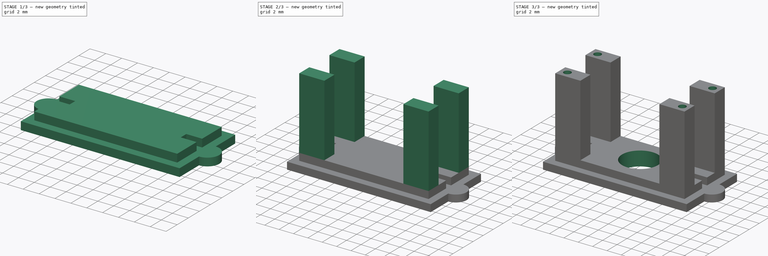
[diagram: build sequence overview — one tinted view per stage of 3, left to right]
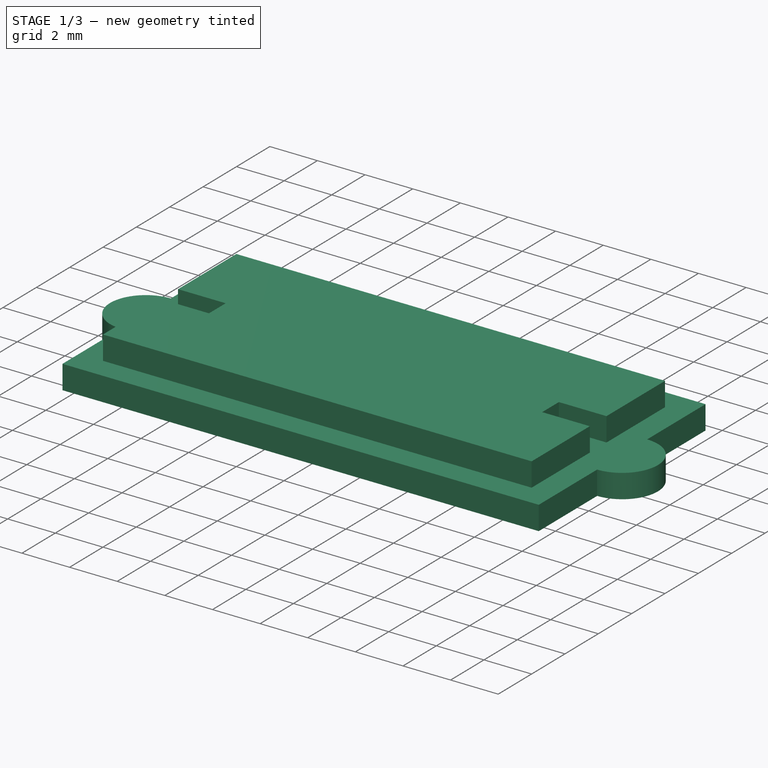
[diagram: stage 1 of 3 — iso view after this stage's code; geometry added in this stage tinted green]
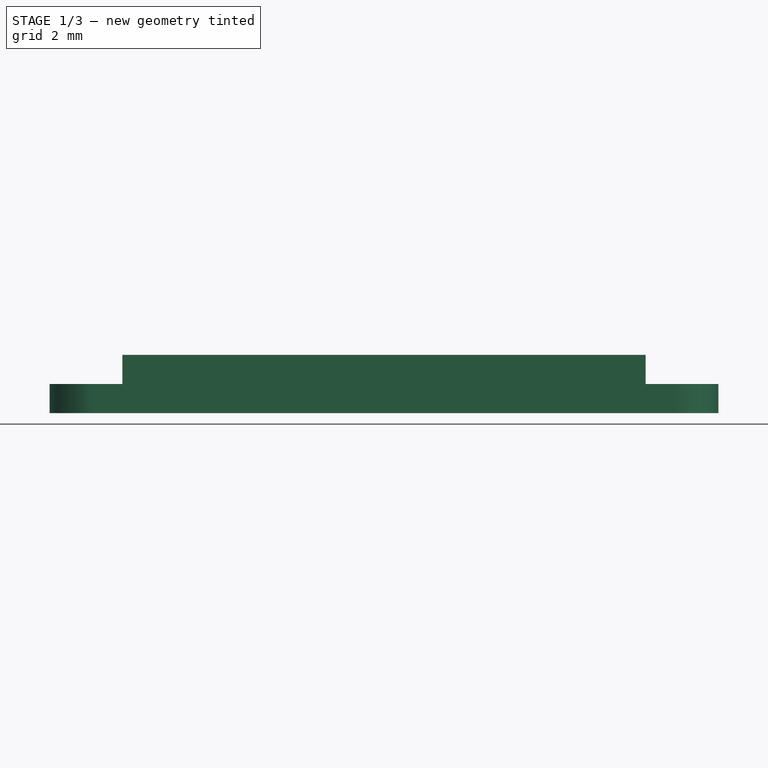
[diagram: stage 1 of 3 — front view after this stage's code; geometry added in this stage tinted green]
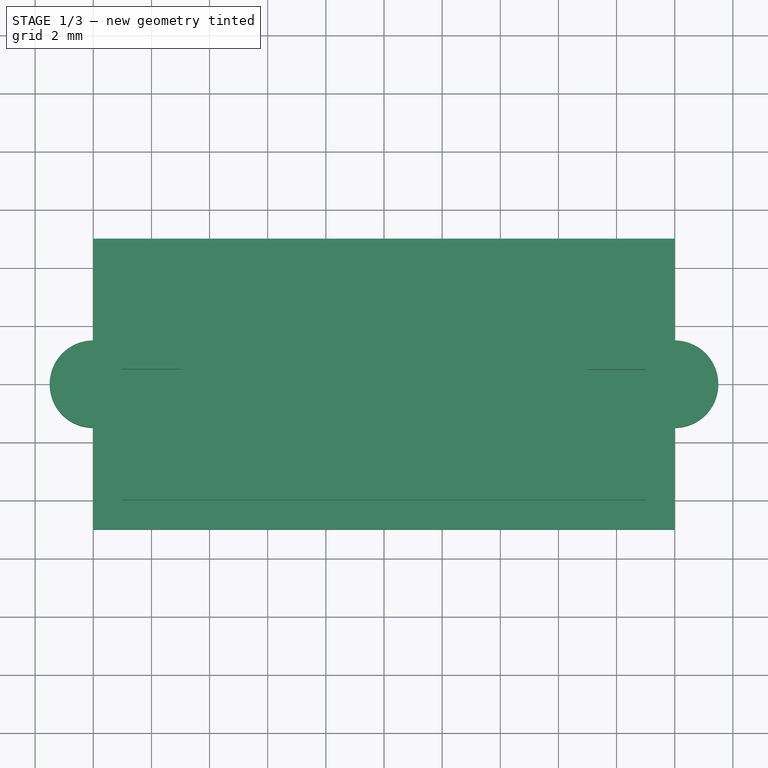
[diagram: stage 1 of 3 — top view after this stage's code; geometry added in this stage tinted green]
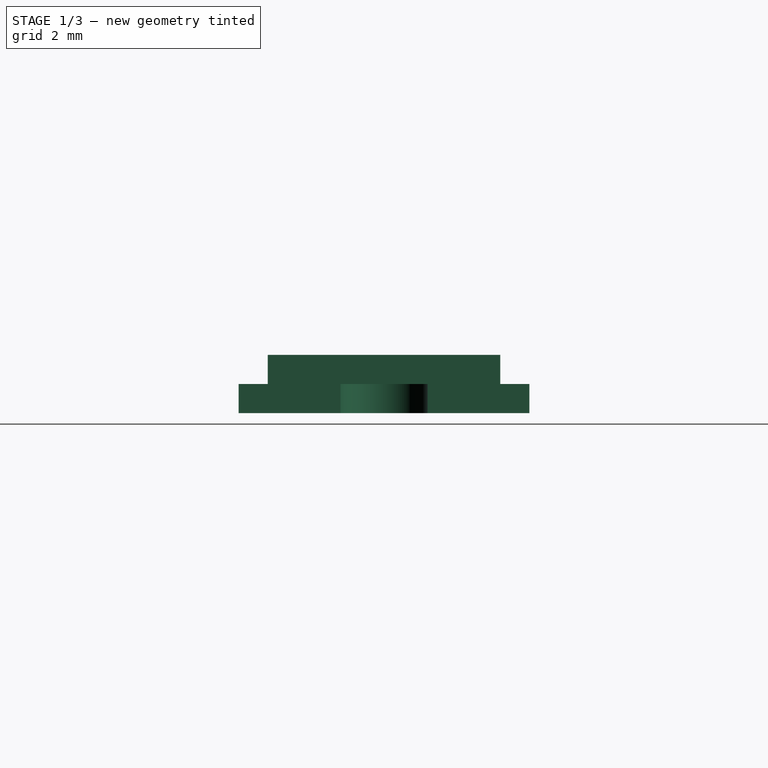
[diagram: stage 1 of 3 — right view after this stage's code; geometry added in this stage tinted green]
FCSTD DOCUMENT  (FreeCAD 0.20R29177 +233 (Git))
Label: suct_chamb_floor05
License: All rights reserved
LicenseURL: http://en.wikipedia.org/wiki/All_rights_reserved
objects: Sketcher::SketchObject×5, PartDesign::Pad×3, Spreadsheet::Sheet×1, PartDesign::Pocket×1, PartDesign::Hole×1, PartDesign::Body×1
note: 16 computed .brp shape members not serialized (recipe doc carries the construction recipe); baked Part::Feature solids carry a one-line shape summary decoded from their .brp

FEATURE [Spreadsheet::Sheet] Spreadsheet
  cells = A1=floor ; B1=of suct ; C1=chamber; C2=out ; D2=in; B3=ln; C3(fl_ln_o)=20; D3(fl_ln_in)=18; B4=w; C4(fl_w_o)=10; D4(fl_w_in)=8; B5=h; C5(fl_h_o)=1; D5(fl_h_in)=1; B6=hole d; C6(hole_dm)=5; A8=fangs; B8=ln; C8(fn_ln)=3.5; B9=w; C9(fn_w)=2; B10=h; C10(fn_h)=10; B11=fg; C11(fn_fg)=1; B12=vc hole; C12=2; C13=1; B14=fix hole; C14(fix_holed)=1; B15=shift_h; C15(fix_shh)=1; B16=shift_ln; C16(fix_shln)=1
FEATURE [Sketcher::SketchObject] Sketch  label="bt"
  FullyConstrained = false
  MapMode = 5
  Support = -> [XY_Plane]
  expr: Constraints[8] = Spreadsheet.fl_ln_o
  expr: Constraints[9] = Spreadsheet.fl_w_o
  sketch-geometry (8):
    g0: LineSegment StartX=-10 StartY=5 StartZ=0 EndX=10 EndY=5 EndZ=0
    g1: LineSegment StartX=10 StartY=5 StartZ=0 EndX=10 EndY=1.5 EndZ=0
    g2: LineSegment StartX=10 StartY=-5 StartZ=0 EndX=-10 EndY=-5 EndZ=0
    g3: LineSegment StartX=-10 StartY=-5 StartZ=0 EndX=-10 EndY=-1.5 EndZ=0
    g4: ArcOfCircle CenterX=10 CenterY=0 CenterZ=0 NormalX=0 NormalY=0 NormalZ=1 AngleXU=0 Radius=1.5 StartAngle=4.71239 EndAngle=7.85398
    g5: ArcOfCircle CenterX=-10 CenterY=0 CenterZ=0 NormalX=0 NormalY=0 NormalZ=1 AngleXU=0 Radius=1.5 StartAngle=1.5708 EndAngle=4.71239
    g6: LineSegment StartX=10 StartY=-1.5 StartZ=0 EndX=10 EndY=-5 EndZ=0
    g7: LineSegment StartX=-10 StartY=1.5 StartZ=0 EndX=-10 EndY=5 EndZ=0
  constraints (21):
    c: Coincident(g0,g1)
    c: Coincident(g6,g2)
    c: Coincident(g2,g3)
    c: Coincident(g7,g0)
    c: Horizontal(g0)
    c: Horizontal(g2)
    c: Vertical(g1)
    c: Vertical(g3)
    c: DistanceX(g0,g0) = 20
    c: DistanceY(g6,g1) = 10
    c: Symmetric(g6,g0,g-1)
    c: PointOnObject(g4,g1)
    c: Diameter(g4) = 3
    c: PointOnObject(g5,g3)
    c: Diameter(g5) = 3
    c: PointOnObject(g5,g-1)
    c: PointOnObject(g4,g-1)
    c: Coincident(g1,g4)
    c: Coincident(g6,g4)
    c: Coincident(g3,g5)
    c: Coincident(g7,g5)
FEATURE [PartDesign::Pad] Pad  label="bottom"
  Direction = (0,0,1)
  Length = 1
  Length2 = 100
  Profile = -> Sketch
  Type = 0
  expr: Length = Spreadsheet.fl_h_o
FEATURE [Sketcher::SketchObject] Sketch001  label="btmin"
  FullyConstrained = false
  MapMode = 5
  Placement = pos=(0,0,1) rot=(0,0,1;0rad)
  Support = -> [Pad]
  expr: Constraints[8] = Spreadsheet.fl_ln_in
  expr: Constraints[9] = Spreadsheet.fl_w_in
  sketch-geometry (12):
    g0: LineSegment StartX=-9 StartY=4 StartZ=0 EndX=9 EndY=4 EndZ=0
    g1: LineSegment StartX=9 StartY=4 StartZ=0 EndX=9 EndY=0.489518 EndZ=0
    g2: LineSegment StartX=9 StartY=-4 StartZ=0 EndX=-9 EndY=-4 EndZ=0
    g3: LineSegment StartX=-9 StartY=-4 StartZ=0 EndX=-9 EndY=-0.49649 EndZ=0
    g4: LineSegment StartX=9 StartY=0.489518 StartZ=0 EndX=7 EndY=0.489518 EndZ=0
    g5: LineSegment StartX=9 StartY=-0.510482 StartZ=0 EndX=7 EndY=-0.510482 EndZ=0
    g6: LineSegment StartX=7 StartY=0.489518 StartZ=0 EndX=7 EndY=-0.510482 EndZ=0
    g7: LineSegment StartX=-9 StartY=0.50351 StartZ=0 EndX=-7 EndY=0.50351 EndZ=0
    g8: LineSegment StartX=-9 StartY=-0.49649 StartZ=0 EndX=-7 EndY=-0.49649 EndZ=0
    g9: LineSegment StartX=-7 StartY=0.50351 StartZ=0 EndX=-7 EndY=-0.49649 EndZ=0
    g10: LineSegment StartX=-9 StartY=0.50351 StartZ=0 EndX=-9 EndY=4 EndZ=0
    g11: LineSegment StartX=9 StartY=-0.510482 StartZ=0 EndX=9 EndY=-4 EndZ=0
  constraints (29):
    c: Coincident(g0,g1)
    c: Coincident(g11,g2)
    c: Coincident(g2,g3)
    c: Coincident(g10,g0)
    c: Horizontal(g0)
    c: Horizontal(g2)
    c: Vertical(g1)
    c: Vertical(g3)
    c: DistanceX(g0,g0) = 18
    c: DistanceY(g11,g1) = 8
    c: Symmetric(g2,g0,g-1)
    c: Horizontal(g4)
    c: Horizontal(g5)
    c: Coincident(g6,g4)
    c: Coincident(g6,g5)
    c: Vertical(g6)
    c: Horizontal(g7)
    c: Horizontal(g8)
    c: Coincident(g9,g7)
    c: Coincident(g9,g8)
    c: Vertical(g9)
    c: DistanceX(g7,g7) = 2
    c: DistanceX(g4,g4) = 2
    c: DistanceY(g6,g6) = 1
    c: DistanceY(g9,g9) = 1
    c: Coincident(g3,g8)
    c: Coincident(g10,g7)
    c: Coincident(g1,g4)
    c: Coincident(g11,g5)
FEATURE [PartDesign::Pad] Pad001  label="bottm_ins"
  BaseFeature = -> Pad
  Direction = (0,0,1)
  Length = 1
  Length2 = 10
  Profile = -> Sketch001
  ReferenceAxis = -> Sketch001 [N_Axis]
  Type = 0
  expr: Length = Spreadsheet.fl_h_in
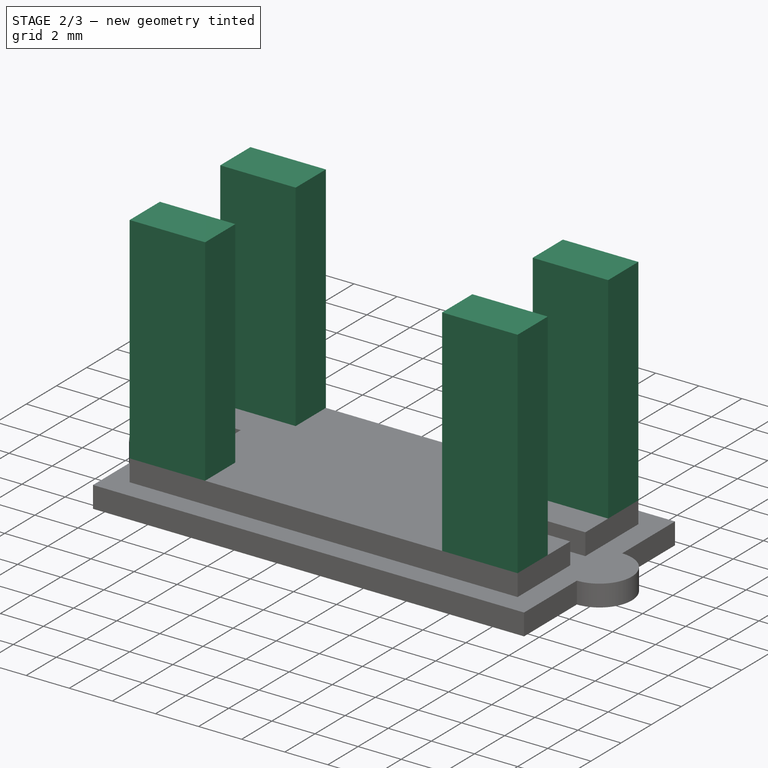
[diagram: stage 2 of 3 — iso view after this stage's code; geometry added in this stage tinted green]
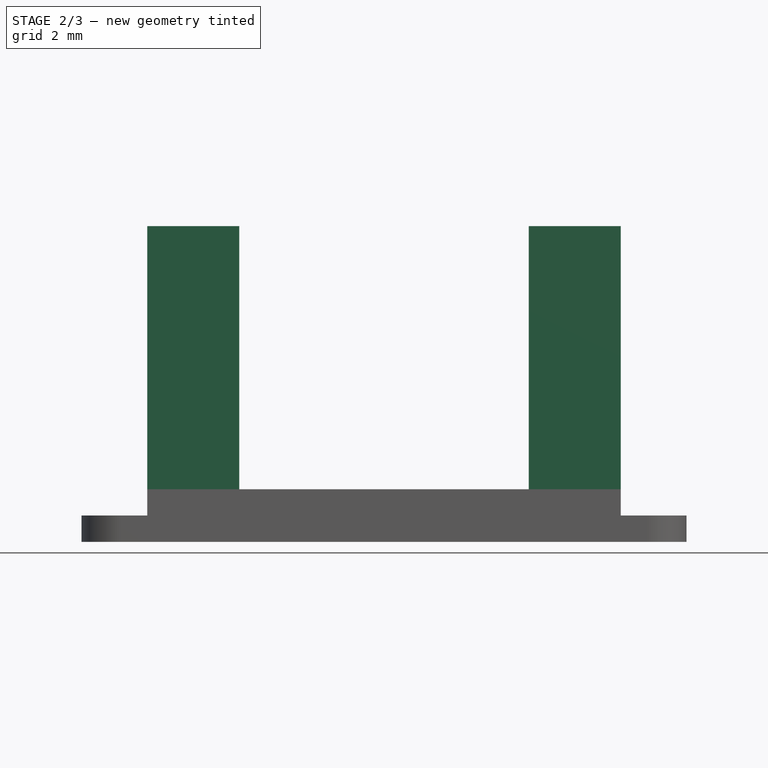
[diagram: stage 2 of 3 — front view after this stage's code; geometry added in this stage tinted green]
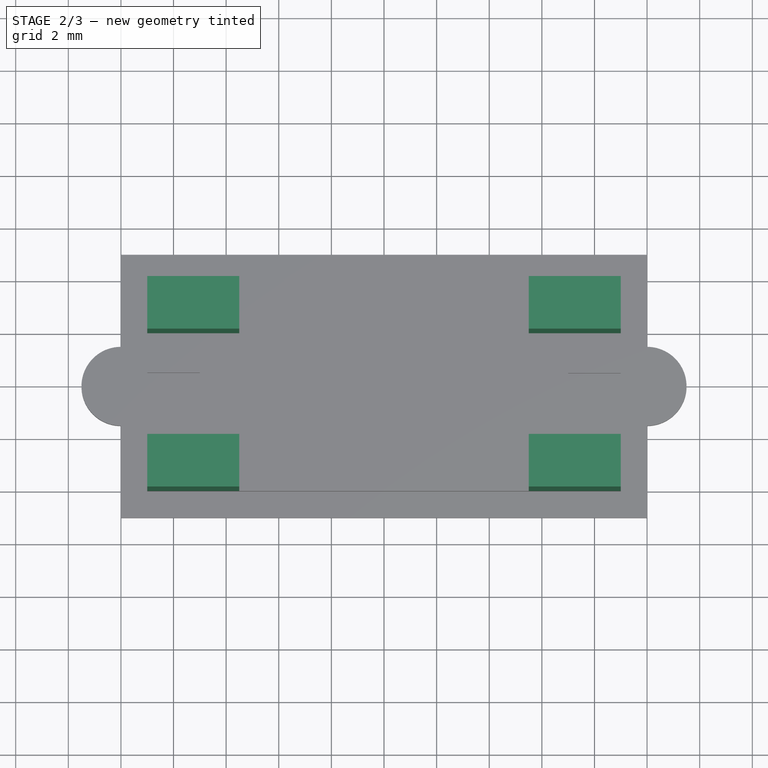
[diagram: stage 2 of 3 — top view after this stage's code; geometry added in this stage tinted green]
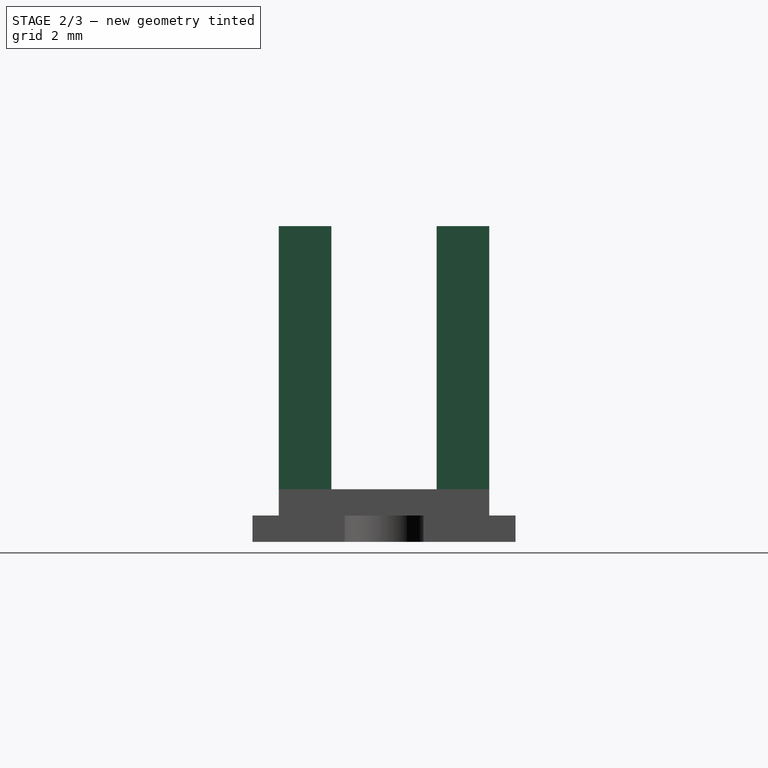
[diagram: stage 2 of 3 — right view after this stage's code; geometry added in this stage tinted green]
FEATURE [Sketcher::SketchObject] Sketch002  label="stk"
  ExternalGeometry = -> [Pad001]
  FullyConstrained = true
  MapMode = 5
  Placement = pos=(0,0,2) rot=(0,0,1;0rad)
  Support = -> [Pad001]
  expr: Constraints[36] = Spreadsheet.fn_ln
  expr: Constraints[37] = Spreadsheet.fn_ln
  expr: Constraints[38] = Spreadsheet.fn_w
  expr: Constraints[39] = Spreadsheet.fn_w
  sketch-geometry (16):
    g0: LineSegment StartX=9 StartY=-4 StartZ=0 EndX=5.5 EndY=-4 EndZ=0
    g1: LineSegment StartX=5.5 StartY=-4 StartZ=0 EndX=5.5 EndY=-2 EndZ=0
    g2: LineSegment StartX=5.5 StartY=-2 StartZ=0 EndX=9 EndY=-2 EndZ=0
    g3: LineSegment StartX=9 StartY=-2 StartZ=0 EndX=9 EndY=-4 EndZ=0
    g4: LineSegment StartX=9 StartY=4 StartZ=0 EndX=5.5 EndY=4 EndZ=0
    g5: LineSegment StartX=5.5 StartY=4 StartZ=0 EndX=5.5 EndY=2 EndZ=0
    g6: LineSegment StartX=5.5 StartY=2 StartZ=0 EndX=9 EndY=2 EndZ=0
    g7: LineSegment StartX=9 StartY=2 StartZ=0 EndX=9 EndY=4 EndZ=0
    g8: LineSegment StartX=-9 StartY=4 StartZ=0 EndX=-5.5 EndY=4 EndZ=0
    g9: LineSegment StartX=-5.5 StartY=4 StartZ=0 EndX=-5.5 EndY=2 EndZ=0
    g10: LineSegment StartX=-5.5 StartY=2 StartZ=0 EndX=-9 EndY=2 EndZ=0
    g11: LineSegment StartX=-9 StartY=2 StartZ=0 EndX=-9 EndY=4 EndZ=0
    g12: LineSegment StartX=-9 StartY=-4 StartZ=0 EndX=-5.5 EndY=-4 EndZ=0
    g13: LineSegment StartX=-5.5 StartY=-4 StartZ=0 EndX=-5.5 EndY=-2 EndZ=0
    g14: LineSegment StartX=-5.5 StartY=-2 StartZ=0 EndX=-9 EndY=-2 EndZ=0
    g15: LineSegment StartX=-9 StartY=-2 StartZ=0 EndX=-9 EndY=-4 EndZ=0
  constraints (44):
    c: Coincident(g0,g1)
    c: Coincident(g1,g2)
    c: Coincident(g2,g3)
    c: Coincident(g3,g0)
    c: Horizontal(g0)
    c: Horizontal(g2)
    c: Vertical(g1)
    c: Vertical(g3)
    c: Coincident(g0,g-3)
    c: Coincident(g4,g5)
    c: Coincident(g5,g6)
    c: Coincident(g6,g7)
    c: Coincident(g7,g4)
    c: Horizontal(g4)
    c: Horizontal(g6)
    c: Vertical(g5)
    c: Vertical(g7)
    c: Coincident(g4,g-4)
    c: Coincident(g8,g9)
    c: Coincident(g9,g10)
    c: Coincident(g10,g11)
    c: Coincident(g11,g8)
    c: Horizontal(g8)
    c: Horizontal(g10)
    c: Vertical(g9)
    c: Vertical(g11)
    c: Coincident(g8,g-4)
    c: Coincident(g12,g13)
    c: Coincident(g13,g14)
    c: Coincident(g14,g15)
    c: Coincident(g15,g12)
    c: Horizontal(g12)
    c: Horizontal(g14)
    c: Vertical(g13)
    c: Vertical(g15)
    c: Coincident(g12,g-3)
    c: DistanceX(g2,g2) = 3.5
    c: DistanceX(g10,g10) = 3.5
    c: DistanceY(g1,g1) = 2
    c: DistanceY(g9,g9) = 2
    c: Equal(g2,g6)
    c: Equal(g9,g5)
    c: Equal(g10,g14)
    c: Equal(g1,g13)
FEATURE [PartDesign::Pad] Pad002  label="steck"
  BaseFeature = -> Pad001
  Direction = (0,0,1)
  Length = 10
  Length2 = 10
  Profile = -> Sketch002
  ReferenceAxis = -> Sketch002 [N_Axis]
  Type = 0
  expr: Length = Spreadsheet.fn_h
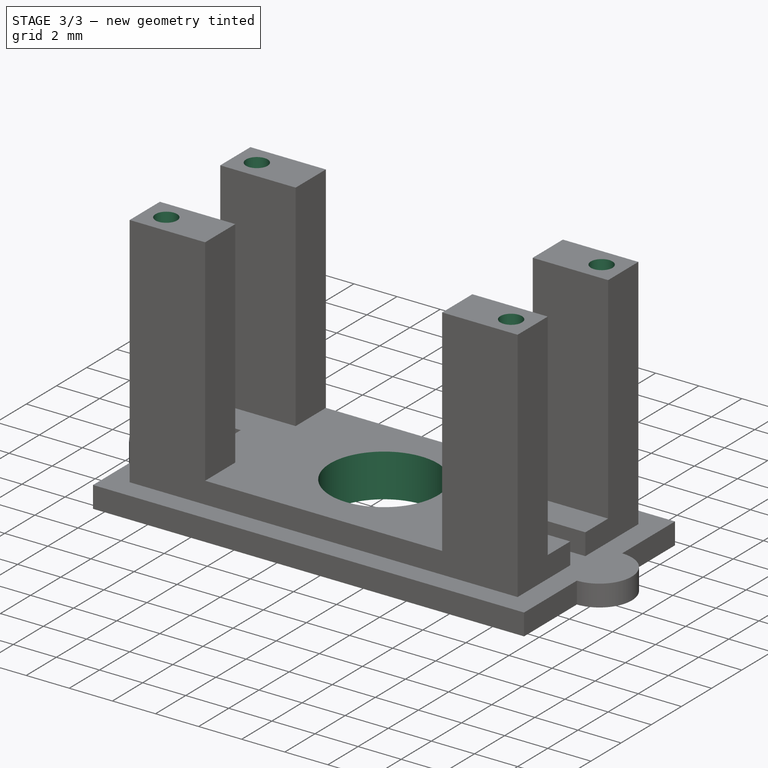
[diagram: stage 3 of 3 — iso view after this stage's code; geometry added in this stage tinted green]
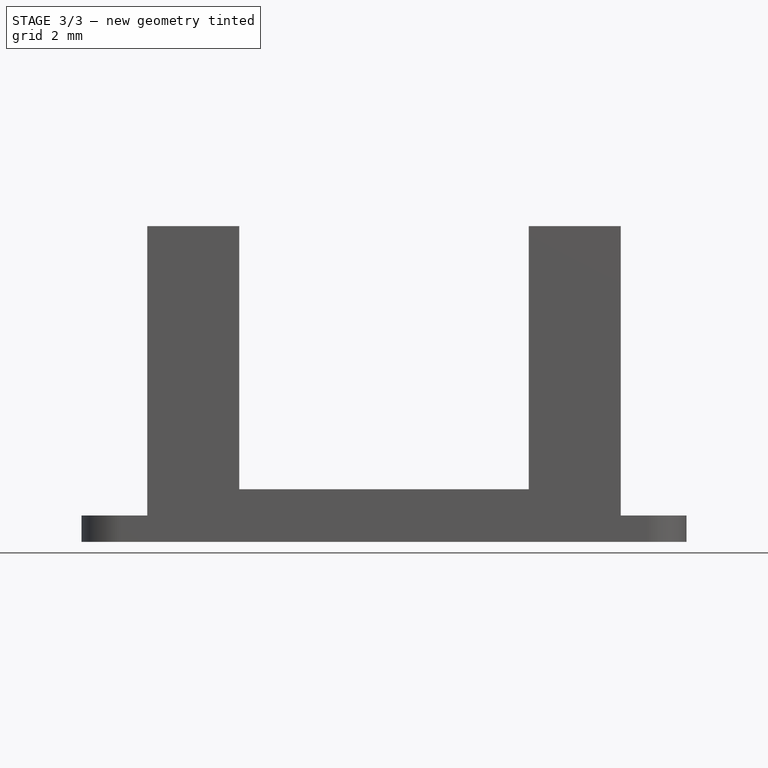
[diagram: stage 3 of 3 — front view after this stage's code; geometry added in this stage tinted green]
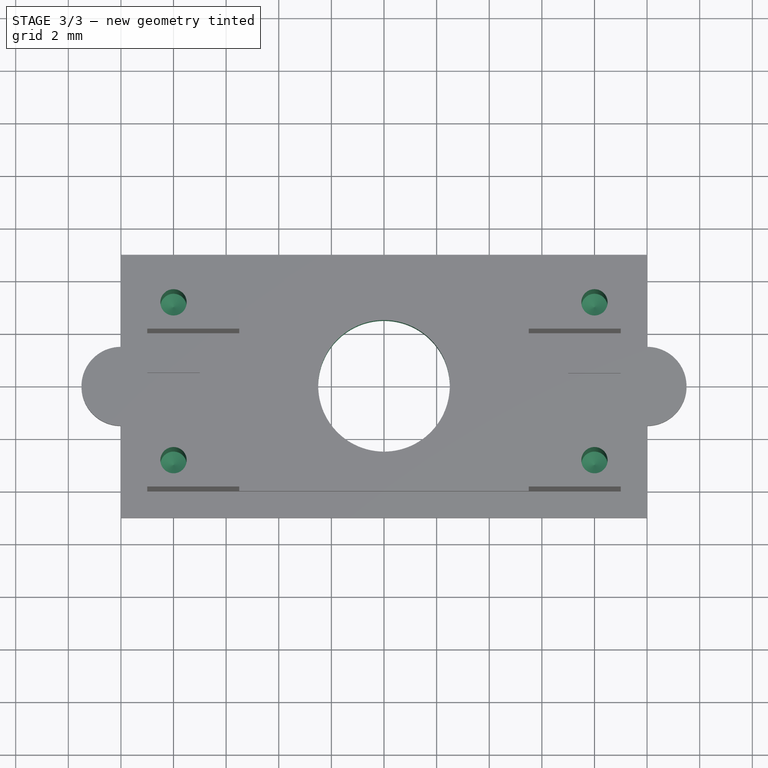
[diagram: stage 3 of 3 — top view after this stage's code; geometry added in this stage tinted green]
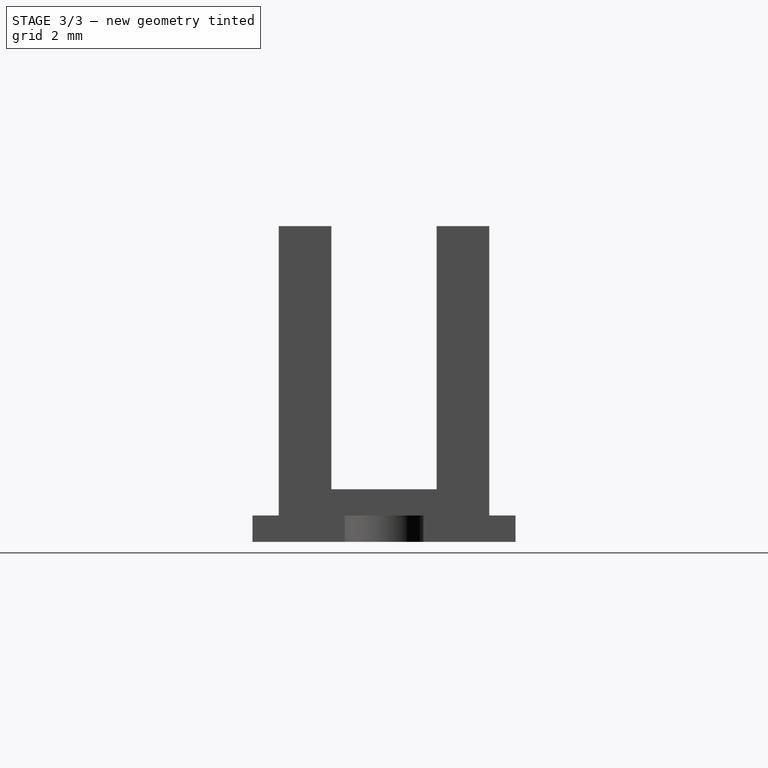
[diagram: stage 3 of 3 — right view after this stage's code; geometry added in this stage tinted green]
FEATURE [Sketcher::SketchObject] Sketch003  label="sct_h"
  FullyConstrained = true
  MapMode = 5
  Placement = pos=(0,0,2) rot=(0,0,1;0rad)
  Support = -> [Pad002]
  expr: Constraints[1] = Spreadsheet.hole_dm
  sketch-geometry (1):
    g0: Circle CenterX=0 CenterY=0 CenterZ=0 NormalX=0 NormalY=0 NormalZ=1 AngleXU=0 Radius=2.5
  constraints (2):
    c: Coincident(g0,g-1)
    c: Diameter(g0) = 5
FEATURE [PartDesign::Pocket] Pocket  label="suct_hole"
  BaseFeature = -> Pad002
  Direction = (0,0,-1)
  Length = 5
  Length2 = 5
  Profile = -> Sketch003
  ReferenceAxis = -> Sketch003 [N_Axis]
  Type = 1
FEATURE [Sketcher::SketchObject] Sketch004
  ExternalGeometry = -> [Pocket]
  FullyConstrained = true
  MapMode = 5
  Placement = pos=(0,0,12) rot=(0,0,1;0rad)
  Support = -> [Pocket]
  expr: Constraints[0] = Spreadsheet.fix_holed
  expr: Constraints[4] = Spreadsheet.fix_shh
  expr: Constraints[5] = Spreadsheet.fix_shln
  expr: Constraints[7] = Spreadsheet.fix_shh
  expr: Constraints[8] = Spreadsheet.fix_shln
  sketch-geometry (4):
    g0: Circle CenterX=8 CenterY=-3 CenterZ=0 NormalX=0 NormalY=0 NormalZ=1 AngleXU=0 Radius=0.5
    g1: Circle CenterX=-8 CenterY=3 CenterZ=0 NormalX=0 NormalY=0 NormalZ=1 AngleXU=0 Radius=0.5
    g2: Circle CenterX=-8 CenterY=-3 CenterZ=0 NormalX=0 NormalY=0 NormalZ=1 AngleXU=0 Radius=0.5
    g3: Circle CenterX=8 CenterY=3 CenterZ=0 NormalX=0 NormalY=0 NormalZ=1 AngleXU=0 Radius=0.5
  constraints (10):
    c: Diameter(g0) = 1
    c: Equal(g0,g3)
    c: Equal(g0,g1)
    c: Equal(g0,g2)
    c: Distance(g0,g-4) = 1
    c: Distance(g0,g-3) = 1
    c: Symmetric(g0,g1,g-1)
    c: Distance(g2,g-9) = 1
    c: Distance(g2,g-10) = 1
    c: Symmetric(g2,g3,g-1)
FEATURE [PartDesign::Hole] Hole
  BaseFeature = -> Pocket
  CustomThreadClearance = 0
  Depth = 10
  DepthType = 0
  Diameter = 1
  DrillForDepth = false
  DrillPoint = 1
  DrillPointAngle = 118
  HoleCutCountersinkAngle = 90
  HoleCutCustomValues = false
  HoleCutDepth = 0
  HoleCutDiameter = 6.1
  HoleCutType = 0
  ModelThread = false
  Profile = -> Sketch004
  Tapered = false
  TaperedAngle = 90
  ThreadClass = 0
  ThreadDepth = 10
  ThreadDepthType = 0
  ThreadDirection = 0
  ThreadFit = 0
  ThreadSize = 0
  ThreadType = 0
  Threaded = false
  UseCustomThreadClearance = false
  expr: Depth = Spreadsheet.fn_h
  expr: Diameter = Spreadsheet.fix_holed
FEATURE [PartDesign::Body] Body
  Group = -> [Sketch,Pad,Sketch001,Pad001,Sketch002,Pad002,Sketch003,Pocket,Sketch004,Hole]
  Origin = -> Origin
  Tip = -> Hole
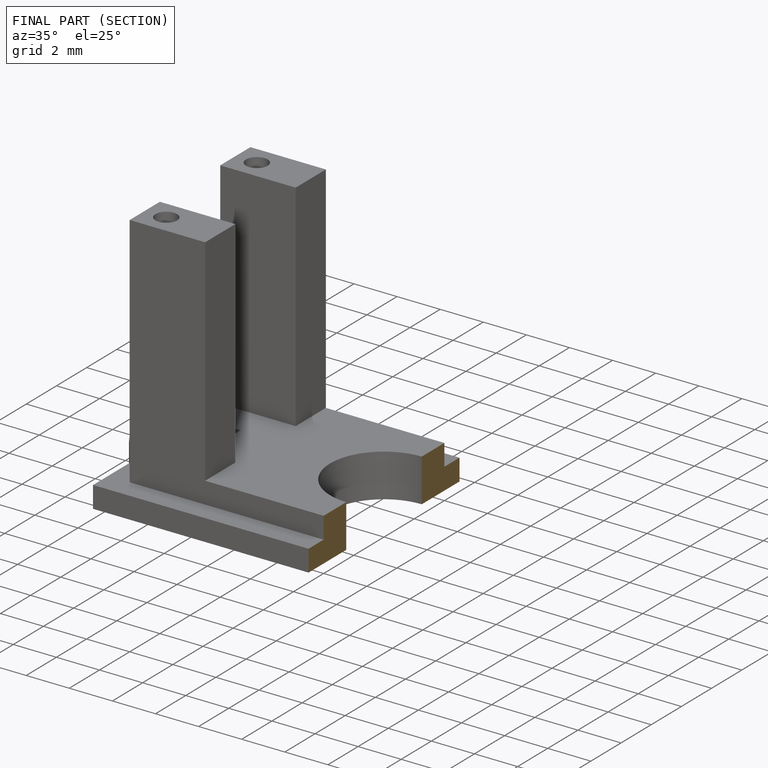
[diagram: finished part — half-section view (interior)]
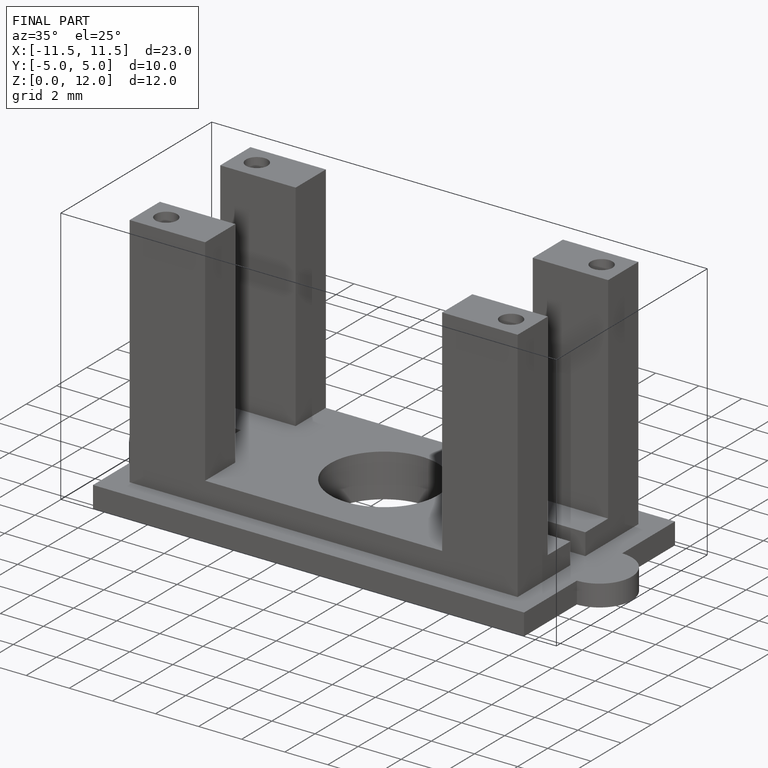
[diagram: finished part — iso view with bounding-box wireframe]
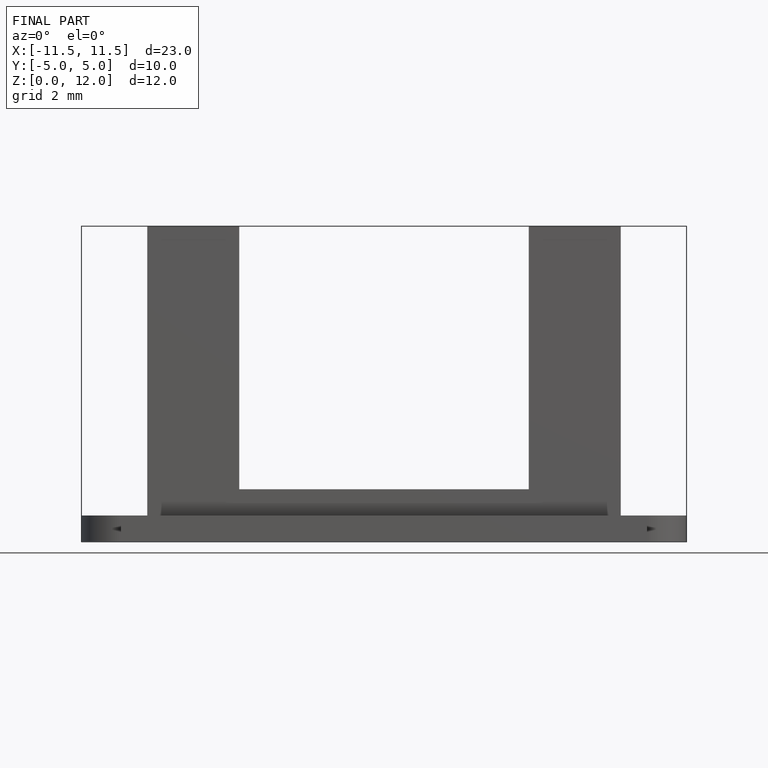
[diagram: finished part — front view with bounding-box wireframe]
